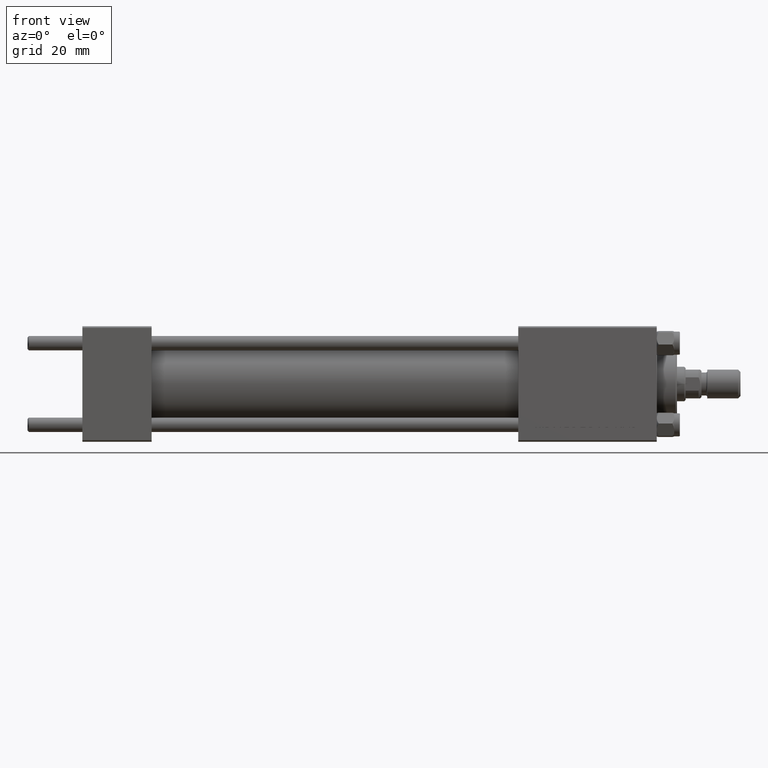
[diagram: clean part render]
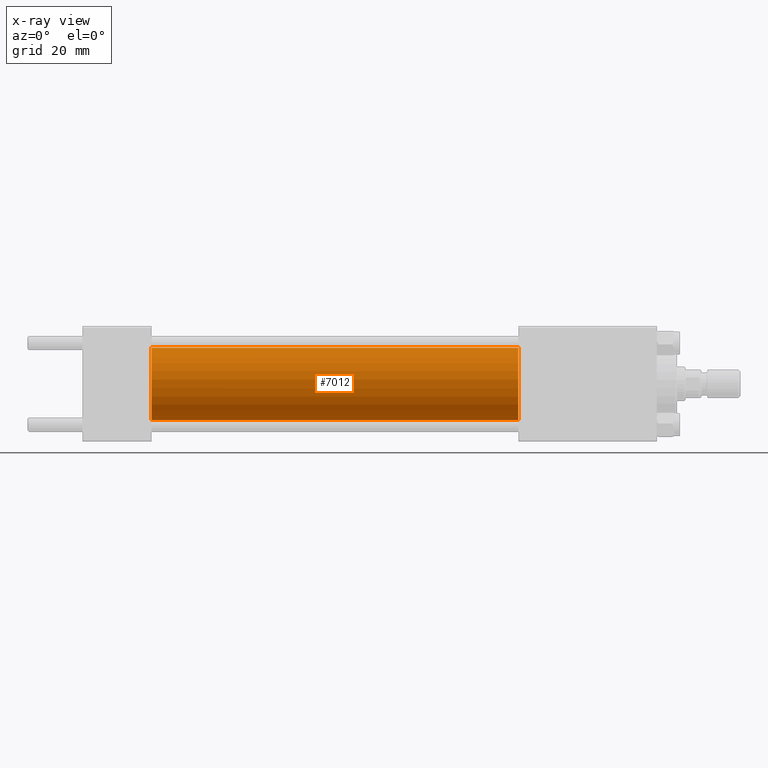
[diagram: x-ray — body ghosted, one internal face saturated and labeled with its STEP entity id]
A machine part, front view, then the same camera in x-ray: the body is ghosted and one INTERNAL B-rep face — a face not visible from any outside direction — is saturated and labeled: STEP entity #7012.
In plain terms, the highlighted cylindrical surface (edge-blend (fillet) strip) has radius 12.5 mm, axis along (-1, -0, -0).
Its self-contained STEP definition (entity closure, byte-faithful):
#711 = DIRECTION ( 'NONE',  ( 1.000000000000000000, 0.000000000000000000, 0.000000000000000000 ) ) ;
#2112 = ORIENTED_EDGE ( 'NONE', *, *, #14809, .F. ) ;
#2464 = ORIENTED_EDGE ( 'NONE', *, *, #42002, .F. ) ;
#3130 = CIRCLE ( 'NONE', #16122, 12.49999999999999645 ) ;
#3937 = VERTEX_POINT ( 'NONE', #7414 ) ;
#4553 = ORIENTED_EDGE ( 'NONE', *, *, #13320, .T. ) ;
#4583 = CARTESIAN_POINT ( 'NONE',  ( 151.0000000000000000, 1.530808498934191127E-15, -12.49999999999999645 ) ) ;
#5530 = DIRECTION ( 'NONE',  ( 0.000000000000000000, 0.000000000000000000, -1.000000000000000000 ) ) ;
#6409 = CARTESIAN_POINT ( 'NONE',  ( 151.0000000000000000, 0.000000000000000000, 0.000000000000000000 ) ) ;
#7012 = ADVANCED_FACE ( 'NONE', ( #11742 ), #22260, .F. ) ;
#7260 = VERTEX_POINT ( 'NONE', #45850 ) ;
#7414 = CARTESIAN_POINT ( 'NONE',  ( 24.00000000000000000, 1.530808498934191127E-15, -12.49999999999999645 ) ) ;
#11742 = FACE_OUTER_BOUND ( 'NONE', #26256, .T. ) ;
#12731 = VECTOR ( 'NONE', #31758, 1000.000000000000000 ) ;
#13320 = EDGE_CURVE ( 'NONE', #35277, #3937, #36134, .T. ) ;
#14506 = CARTESIAN_POINT ( 'NONE',  ( 24.00000000000000000, 0.000000000000000000, 12.49999999999999645 ) ) ;
#14809 = EDGE_CURVE ( 'NONE', #41726, #3937, #32128, .T. ) ;
#16122 = AXIS2_PLACEMENT_3D ( 'NONE', #6409, #26010, #41809 ) ;
#20141 = DIRECTION ( 'NONE',  ( -1.000000000000000000, -0.000000000000000000, -0.000000000000000000 ) ) ;
#22260 = CYLINDRICAL_SURFACE ( 'NONE', #35226, 12.49999999999999645 ) ;
#23187 = AXIS2_PLACEMENT_3D ( 'NONE', #31766, #711, #5530 ) ;
#23465 = DIRECTION ( 'NONE',  ( 0.000000000000000000, 0.000000000000000000, 1.000000000000000000 ) ) ;
#23624 = LINE ( 'NONE', #46326, #12731 ) ;
#23642 = EDGE_CURVE ( 'NONE', #7260, #35277, #3130, .T. ) ;
#26010 = DIRECTION ( 'NONE',  ( 1.000000000000000000, 0.000000000000000000, 0.000000000000000000 ) ) ;
#26256 = EDGE_LOOP ( 'NONE', ( #31008, #4553, #2112, #2464 ) ) ;
#30413 = VECTOR ( 'NONE', #35128, 1000.000000000000000 ) ;
#31008 = ORIENTED_EDGE ( 'NONE', *, *, #23642, .T. ) ;
#31758 = DIRECTION ( 'NONE',  ( -1.000000000000000000, -0.000000000000000000, -0.000000000000000000 ) ) ;
#31766 = CARTESIAN_POINT ( 'NONE',  ( 24.00000000000000000, 0.000000000000000000, 0.000000000000000000 ) ) ;
#32128 = CIRCLE ( 'NONE', #23187, 12.49999999999999645 ) ;
#35128 = DIRECTION ( 'NONE',  ( -1.000000000000000000, -0.000000000000000000, -0.000000000000000000 ) ) ;
#35226 = AXIS2_PLACEMENT_3D ( 'NONE', #42846, #20141, #23465 ) ;
#35277 = VERTEX_POINT ( 'NONE', #44248 ) ;
#36134 = LINE ( 'NONE', #4583, #30413 ) ;
#41726 = VERTEX_POINT ( 'NONE', #14506 ) ;
#41809 = DIRECTION ( 'NONE',  ( 0.000000000000000000, 0.000000000000000000, -1.000000000000000000 ) ) ;
#42002 = EDGE_CURVE ( 'NONE', #7260, #41726, #23624, .T. ) ;
#42846 = CARTESIAN_POINT ( 'NONE',  ( 151.0000000000000000, 0.000000000000000000, 0.000000000000000000 ) ) ;
#44248 = CARTESIAN_POINT ( 'NONE',  ( 151.0000000000000000, 1.530808498934191127E-15, -12.49999999999999645 ) ) ;
#45850 = CARTESIAN_POINT ( 'NONE',  ( 151.0000000000000000, 0.000000000000000000, 12.49999999999999645 ) ) ;
#46326 = CARTESIAN_POINT ( 'NONE',  ( 151.0000000000000000, 0.000000000000000000, 12.49999999999999645 ) ) ;